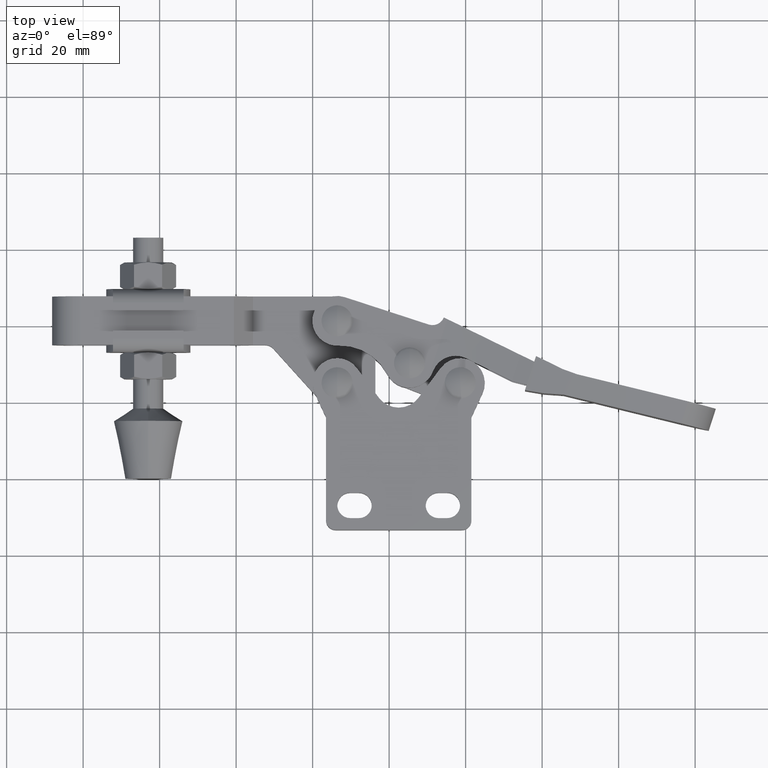
[diagram: clean part render]
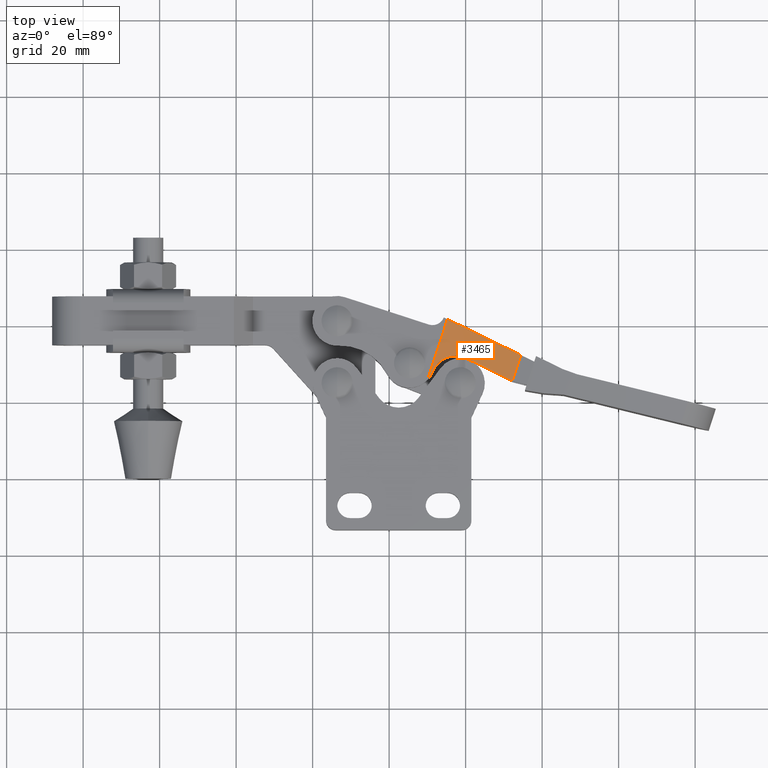
[diagram: same view with one face highlighted and labeled with its STEP entity id]
A machine part, top view. The second image highlights one B-rep face of the part: STEP entity #3465.
In plain terms, the highlighted cylindrical surface (partial cylindrical patch) has radius 231.561 mm, axis along (0.3102, 0.9507, -0).
Its self-contained STEP definition (entity closure, byte-faithful):
#96 = VERTEX_POINT ( 'NONE', #9324 ) ;
#189 = DIRECTION ( 'NONE',  ( 0.3101901272761489700, 0.9506745420702116300, -6.138348435031067000E-033 ) ) ;
#203 = VERTEX_POINT ( 'NONE', #9290 ) ;
#366 = CARTESIAN_POINT ( 'NONE',  ( 48.05720513301630300, 35.33407632725361200, 7.351654383586467400 ) ) ;
#444 = B_SPLINE_CURVE_WITH_KNOTS ( 'NONE', 3,
 ( #7777, #7674, #4642, #1070, #7073, #6171 ),
 .UNSPECIFIED., .F., .F.,
 ( 4, 2, 4 ),
 ( 9.813077866773594800E-018, 0.001278833540248188700, 0.002557667080496367800 ),
 .UNSPECIFIED. ) ;
#448 = CARTESIAN_POINT ( 'NONE',  ( 32.53116285906588700, 29.81359052654822900, 6.169215577552534100 ) ) ;
#484 = CARTESIAN_POINT ( 'NONE',  ( 38.06284446476234300, 32.00528366926955900, 6.537296549718654100 ) ) ;
#546 = CARTESIAN_POINT ( 'NONE',  ( 48.99467029867625500, 15.62610703832507900, 8.464529852086068100 ) ) ;
#991 = FACE_OUTER_BOUND ( 'NONE', #2563, .T. ) ;
#1070 = CARTESIAN_POINT ( 'NONE',  ( 30.62590951393550000, 26.39706446838927100, 6.117459777124067500 ) ) ;
#1139 = CARTESIAN_POINT ( 'NONE',  ( 44.18689847046211800, 29.36852451152469400, 7.191664232772864400 ) ) ;
#1275 = CARTESIAN_POINT ( 'NONE',  ( 33.14434315558798300, 30.45372901697003700, 6.196560747524294800 ) ) ;
#1308 = CARTESIAN_POINT ( 'NONE',  ( 39.35778463177757700, 31.71903852775913900, 6.660472403477159600 ) ) ;
#1825 = ORIENTED_EDGE ( 'NONE', *, *, #2270, .F. ) ;
#1961 = CARTESIAN_POINT ( 'NONE',  ( 52.18104517009256000, 25.39174818992418600, 8.464529852086057500 ) ) ;
#1984 = CARTESIAN_POINT ( 'NONE',  ( 35.25211501601198400, 41.62591504274967500, 6.095809861063757200 ) ) ;
#1987 = EDGE_CURVE ( 'NONE', #203, #8509, #444, .T. ) ;
#2020 = EDGE_CURVE ( 'NONE', #96, #8014, #4922, .T. ) ;
#2096 = CARTESIAN_POINT ( 'NONE',  ( 34.03912904480161200, 31.10122422578925200, 6.244415552487928300 ) ) ;
#2129 = CARTESIAN_POINT ( 'NONE',  ( 40.16819731803133900, 31.36767166094017200, 6.747218502402499300 ) ) ;
#2270 = EDGE_CURVE ( 'NONE', #3481, #8014, #6009, .T. ) ;
#2460 = ORIENTED_EDGE ( 'NONE', *, *, #2873, .F. ) ;
#2534 = VECTOR ( 'NONE', #189, 1000.000000000000100 ) ;
#2563 = EDGE_LOOP ( 'NONE', ( #6728, #3745, #7725, #8292, #1825, #2460 ) ) ;
#2745 = CARTESIAN_POINT ( 'NONE',  ( 40.16819731803133900, 31.36767166094017200, 6.747218502402499300 ) ) ;
#2862 =( BOUNDED_CURVE ( )  B_SPLINE_CURVE ( 3, ( #2745, #1139, #6874, #1961 ),
 .UNSPECIFIED., .F., .F. ) 
 B_SPLINE_CURVE_WITH_KNOTS ( ( 4, 4 ),
 ( 1.670551148408684300, 1.728360714014919800 ),
 .UNSPECIFIED. ) 
 CURVE ( )  GEOMETRIC_REPRESENTATION_ITEM ( )  RATIONAL_B_SPLINE_CURVE ( ( 1.000000000000000000, 0.9997215238997625400, 0.9997215238997625400, 1.000000000000000000 ) ) 
 REPRESENTATION_ITEM ( '' )  );
#2873 = EDGE_CURVE ( 'NONE', #8509, #3481, #6641, .T. ) ;
#2918 = CYLINDRICAL_SURFACE ( 'NONE', #8137, 231.5615392626901900 ) ;
#2926 = CARTESIAN_POINT ( 'NONE',  ( 34.62508337694019600, 31.41901703954163600, 6.279245076697571400 ) ) ;
#2995 = CARTESIAN_POINT ( 'NONE',  ( 41.66773385659199400, 38.47357182328074300, 6.561525637091167900 ) ) ;
#3019 = VECTOR ( 'NONE', #8756, 1000.000000000000100 ) ;
#3465 = ADVANCED_FACE ( 'NONE', ( #991 ), #2918, .F. ) ;
#3469 = B_SPLINE_CURVE_WITH_KNOTS ( 'NONE', 3,
 ( #8643, #6983, #4522, #10284, #5355, #448, #6177, #1275, #7023, #2096, #7850, #2926, #8674, #3738, #9501, #4561, #10317, #5390, #484, #6219, #1308, #7058, #2129 ),
 .UNSPECIFIED., .F., .F.,
 ( 4, 2, 2, 2, 2, 2, 1, 2, 2, 2, 2, 4 ),
 ( 6.938893903907228400E-018, 0.001322103059573223600, 0.001983154589359831800, 0.002644206119146440200, 0.003966309178719650500, 0.004627360708506260200, 0.005288412238292876000, 0.005949463768079491800, 0.006610515297866106700, 0.007932618357439337500, 0.009254721417012567300, 0.01057682447658579900 ),
 .UNSPECIFIED. ) ;
#3481 = VERTEX_POINT ( 'NONE', #4120 ) ;
#3585 = VERTEX_POINT ( 'NONE', #10062 ) ;
#3725 = CARTESIAN_POINT ( 'NONE',  ( 54.40705452639081600, 32.21404922195827000, 8.464529852086068100 ) ) ;
#3738 = CARTESIAN_POINT ( 'NONE',  ( 35.44383299332879700, 31.74114120966648800, 6.332460336575700800 ) ) ;
#3745 = ORIENTED_EDGE ( 'NONE', *, *, #9214, .T. ) ;
#4120 = CARTESIAN_POINT ( 'NONE',  ( 35.25211501601198400, 41.62591504274967500, 6.095809861063757200 ) ) ;
#4522 = CARTESIAN_POINT ( 'NONE',  ( 31.77045727891410100, 28.72669998896531500, 6.142313915572002800 ) ) ;
#4561 = CARTESIAN_POINT ( 'NONE',  ( 36.08823184914015800, 31.90762472786936500, 6.377984556114836500 ) ) ;
#4642 = CARTESIAN_POINT ( 'NONE',  ( 31.07527508132755000, 27.12144976757833300, 6.131161893615400900 ) ) ;
#4654 = EDGE_CURVE ( 'NONE', #3585, #96, #2862, .T. ) ;
#4922 = LINE ( 'NONE', #546, #3019 ) ;
#5355 = CARTESIAN_POINT ( 'NONE',  ( 32.25401033430864600, 29.46500421472318400, 6.158316886901526600 ) ) ;
#5390 = CARTESIAN_POINT ( 'NONE',  ( 37.18268940768948700, 32.04347366652705600, 6.462107234110729500 ) ) ;
#5703 = DIRECTION ( 'NONE',  ( 0.3101901272761489700, 0.9506745420702117400, -6.138348435031067700E-033 ) ) ;
#6009 =( BOUNDED_CURVE ( )  B_SPLINE_CURVE ( 3, ( #1984, #2995, #366, #6101 ),
 .UNSPECIFIED., .F., .F. ) 
 B_SPLINE_CURVE_WITH_KNOTS ( ( 4, 4 ),
 ( 1.636508609076822200, 1.728360714014919800 ),
 .UNSPECIFIED. ) 
 CURVE ( )  GEOMETRIC_REPRESENTATION_ITEM ( )  RATIONAL_B_SPLINE_CURVE ( ( 1.000000000000000000, 0.9992970561354688200, 0.9992970561354688200, 1.000000000000000000 ) ) 
 REPRESENTATION_ITEM ( '' )  );
#6101 = CARTESIAN_POINT ( 'NONE',  ( 54.40705452639081600, 32.21404922195827000, 8.464529852086068100 ) ) ;
#6171 = CARTESIAN_POINT ( 'NONE',  ( 30.06870129353114900, 25.73972449809391700, 6.095809861063757200 ) ) ;
#6177 = CARTESIAN_POINT ( 'NONE',  ( 32.67935110572234700, 29.98092784645501400, 6.175496666044402600 ) ) ;
#6219 = CARTESIAN_POINT ( 'NONE',  ( 38.50671320235619500, 31.93895198331567900, 6.577730077055551100 ) ) ;
#6641 = LINE ( 'NONE', #10022, #2534 ) ;
#6728 = ORIENTED_EDGE ( 'NONE', *, *, #1987, .F. ) ;
#6874 = CARTESIAN_POINT ( 'NONE',  ( 48.19229649543774500, 27.37599514937965500, 7.764260803794169200 ) ) ;
#6983 = CARTESIAN_POINT ( 'NONE',  ( 31.57307425695634600, 28.33174112248573800, 6.137866473315061600 ) ) ;
#7023 = CARTESIAN_POINT ( 'NONE',  ( 33.48417266336664300, 30.73394586307794200, 6.213642352248960800 ) ) ;
#7058 = CARTESIAN_POINT ( 'NONE',  ( 39.76993031444092700, 31.56579396830619500, 6.703172413236051100 ) ) ;
#7073 = CARTESIAN_POINT ( 'NONE',  ( 30.36598909052097600, 26.05678032448640700, 6.107936540579598500 ) ) ;
#7674 = CARTESIAN_POINT ( 'NONE',  ( 31.26472096105515400, 27.50555042530518400, 6.135342967341080600 ) ) ;
#7725 = ORIENTED_EDGE ( 'NONE', *, *, #4654, .T. ) ;
#7777 = CARTESIAN_POINT ( 'NONE',  ( 31.41675751394992800, 27.91291168040693200, 6.136587206188483600 ) ) ;
#7850 = CARTESIAN_POINT ( 'NONE',  ( 34.23232407766970200, 31.21489871033518100, 6.255581963027486500 ) ) ;
#8014 = VERTEX_POINT ( 'NONE', #3725 ) ;
#8137 = AXIS2_PLACEMENT_3D ( 'NONE', #10644, #5703, #9823 ) ;
#8292 = ORIENTED_EDGE ( 'NONE', *, *, #2020, .T. ) ;
#8509 = VERTEX_POINT ( 'NONE', #9346 ) ;
#8643 = CARTESIAN_POINT ( 'NONE',  ( 31.41675751394992800, 27.91291168040693200, 6.136587206188483600 ) ) ;
#8674 = CARTESIAN_POINT ( 'NONE',  ( 35.02622969555592600, 31.60141017052917800, 6.304344743968783000 ) ) ;
#8756 = DIRECTION ( 'NONE',  ( 0.3101901272761489700, 0.9506745420702116300, -6.138348435031067000E-033 ) ) ;
#9214 = EDGE_CURVE ( 'NONE', #203, #3585, #3469, .T. ) ;
#9290 = CARTESIAN_POINT ( 'NONE',  ( 31.41675751394992800, 27.91291168040693200, 6.136587206188483600 ) ) ;
#9324 = CARTESIAN_POINT ( 'NONE',  ( 52.18104517009256000, 25.39174818992418600, 8.464529852086057500 ) ) ;
#9346 = CARTESIAN_POINT ( 'NONE',  ( 30.06870129353114900, 25.73972449809391700, 6.095809861063757200 ) ) ;
#9501 = CARTESIAN_POINT ( 'NONE',  ( 35.86977729655656300, 31.85923336940228600, 6.362201048032528000 ) ) ;
#9823 = DIRECTION ( 'NONE',  ( -0.9506745420702116300, 0.3101901272761489200, 0.0000000000000000000 ) ) ;
#10022 = CARTESIAN_POINT ( 'NONE',  ( 28.90731536317216300, 22.18029452136910600, 6.095809861063757200 ) ) ;
#10062 = CARTESIAN_POINT ( 'NONE',  ( 40.16819731803133900, 31.36767166094017200, 6.747218502402499300 ) ) ;
#10284 = CARTESIAN_POINT ( 'NONE',  ( 32.12566796683864800, 29.28476138824786200, 6.153717967435959200 ) ) ;
#10317 = CARTESIAN_POINT ( 'NONE',  ( 36.74402761798509700, 32.01699291507809200, 6.427063274292495800 ) ) ;
#10644 = CARTESIAN_POINT ( 'NONE',  ( 14.45184447871181100, 26.89688695659207300, 237.1575755926856500 ) ) ;